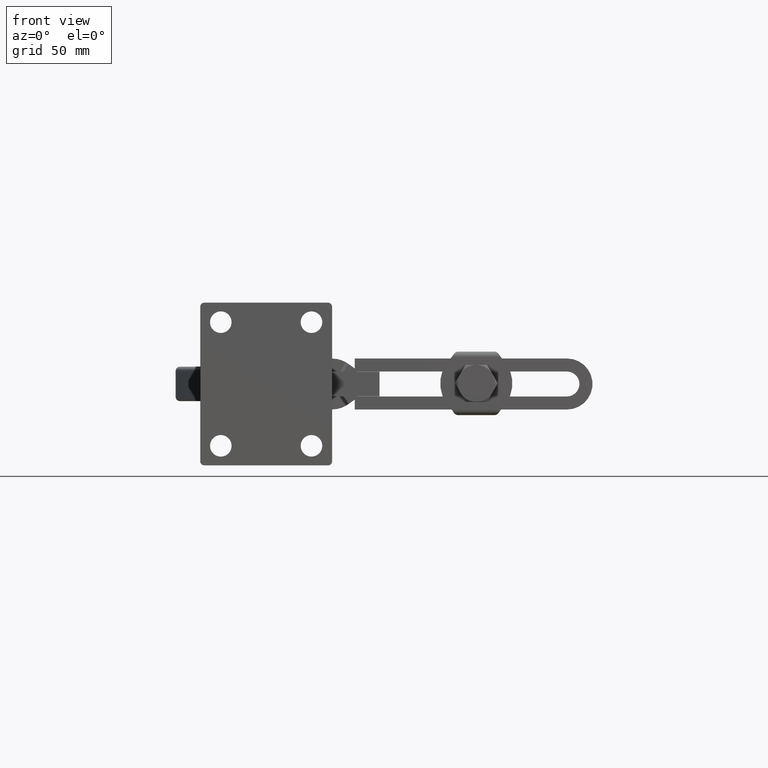
[diagram: clean part render]
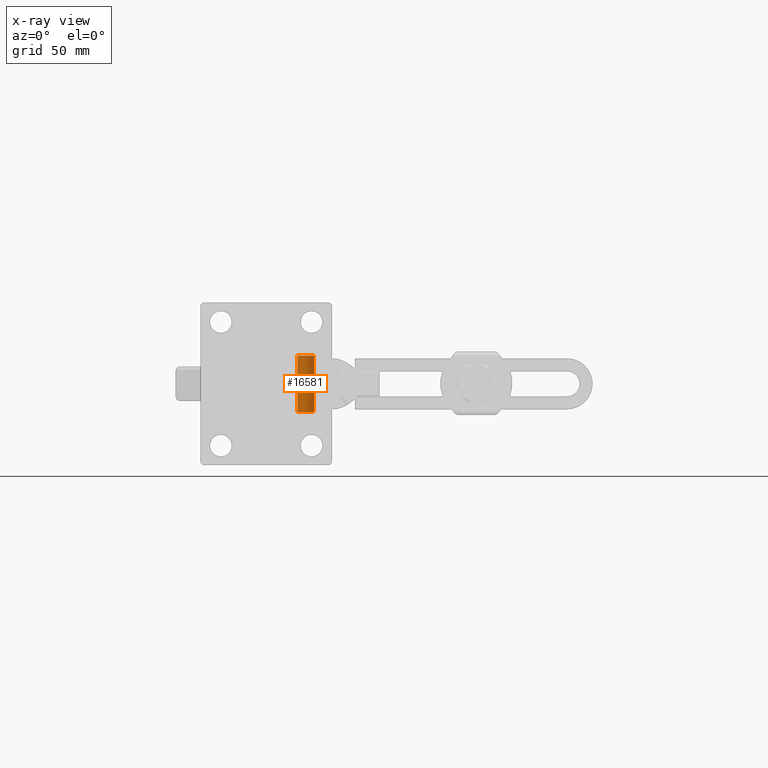
[diagram: x-ray — body ghosted, one internal face saturated and labeled with its STEP entity id]
A machine part, front view, then the same camera in x-ray: the body is ghosted and one INTERNAL B-rep face — a face not visible from any outside direction — is saturated and labeled: STEP entity #16581.
In plain terms, the highlighted cylindrical surface (edge-blend (fillet) strip) has radius 4 mm, axis along (-0, 0, 1).
Its self-contained STEP definition (entity closure, byte-faithful):
#6152=CARTESIAN_POINT('',(92.811439388011550,257.330047288093510,1.175000000000039));
#6153=VERTEX_POINT('',#6152);
#6154=CARTESIAN_POINT('',(92.811439388011536,257.330047288093510,28.475000000000069));
#6155=VERTEX_POINT('',#6154);
#6156=CARTESIAN_POINT('',(92.811439388011550,257.330047288093510,1.175000000000039));
#6157=DIRECTION('',(0.0,0.0,1.0));
#6158=VECTOR('',#6157,27.300000000000029);
#6159=LINE('',#6156,#6158);
#6160=EDGE_CURVE('',#6153,#6155,#6159,.T.);
#6162=CARTESIAN_POINT('',(100.811439388011550,257.330047288093510,1.175000000000046));
#6163=VERTEX_POINT('',#6162);
#6171=CARTESIAN_POINT('',(100.811439388011540,257.330047288093510,28.475000000000076));
#6172=VERTEX_POINT('',#6171);
#6173=CARTESIAN_POINT('',(100.811439388011540,257.330047288093510,28.475000000000076));
#6174=DIRECTION('',(0.0,0.0,-1.0));
#6175=VECTOR('',#6174,27.300000000000029);
#6176=LINE('',#6173,#6175);
#6177=EDGE_CURVE('',#6172,#6163,#6176,.T.);
#8879=CARTESIAN_POINT('',(96.811439388011550,261.330047288093910,1.175000000000043));
#8880=VERTEX_POINT('',#8879);
#8881=CARTESIAN_POINT('',(96.811439388011550,257.330047288093910,1.175000000000043));
#8882=DIRECTION('',(0.0,0.0,-1.0));
#8883=DIRECTION('',(0.0,-1.0,0.0));
#8884=AXIS2_PLACEMENT_3D('',#8881,#8882,#8883);
#8885=CIRCLE('',#8884,4.0);
#8886=EDGE_CURVE('',#8880,#6163,#8885,.T.);
#8889=CARTESIAN_POINT('',(96.811439388011550,257.330047288093910,1.175000000000043));
#8890=DIRECTION('',(0.0,0.0,-1.0));
#8891=DIRECTION('',(0.0,-1.0,0.0));
#8892=AXIS2_PLACEMENT_3D('',#8889,#8890,#8891);
#8893=CIRCLE('',#8892,4.0);
#8894=EDGE_CURVE('',#6153,#8880,#8893,.T.);
#9080=CARTESIAN_POINT('',(96.811439388011550,261.330047288094760,28.475000000000072));
#9081=VERTEX_POINT('',#9080);
#9082=CARTESIAN_POINT('',(96.811439388011536,257.330047288094760,28.475000000000072));
#9083=DIRECTION('',(0.0,0.0,-1.0));
#9084=DIRECTION('',(0.0,-1.0,0.0));
#9085=AXIS2_PLACEMENT_3D('',#9082,#9083,#9084);
#9086=CIRCLE('',#9085,4.0);
#9087=EDGE_CURVE('',#9081,#6172,#9086,.T.);
#9089=CARTESIAN_POINT('',(96.811439388011536,257.330047288094760,28.475000000000072));
#9090=DIRECTION('',(0.0,0.0,-1.0));
#9091=DIRECTION('',(0.0,-1.0,0.0));
#9092=AXIS2_PLACEMENT_3D('',#9089,#9090,#9091);
#9093=CIRCLE('',#9092,4.0);
#9094=EDGE_CURVE('',#6155,#9081,#9093,.T.);
#16568=CARTESIAN_POINT('',(96.811439388011578,257.330047288093510,14.825000000000021));
#16569=DIRECTION('',(0.0,0.0,1.0));
#16570=DIRECTION('',(-1.0,0.0,0.0));
#16571=AXIS2_PLACEMENT_3D('',#16568,#16569,#16570);
#16572=CYLINDRICAL_SURFACE('',#16571,4.0);
#16573=ORIENTED_EDGE('',*,*,#6160,.T.);
#16574=ORIENTED_EDGE('',*,*,#9094,.T.);
#16575=ORIENTED_EDGE('',*,*,#9087,.T.);
#16576=ORIENTED_EDGE('',*,*,#6177,.T.);
#16577=ORIENTED_EDGE('',*,*,#8886,.F.);
#16578=ORIENTED_EDGE('',*,*,#8894,.F.);
#16579=EDGE_LOOP('',(#16573,#16574,#16575,#16576,#16577,#16578));
#16580=FACE_OUTER_BOUND('',#16579,.T.);
#16581=ADVANCED_FACE('',(#16580),#16572,.T.);